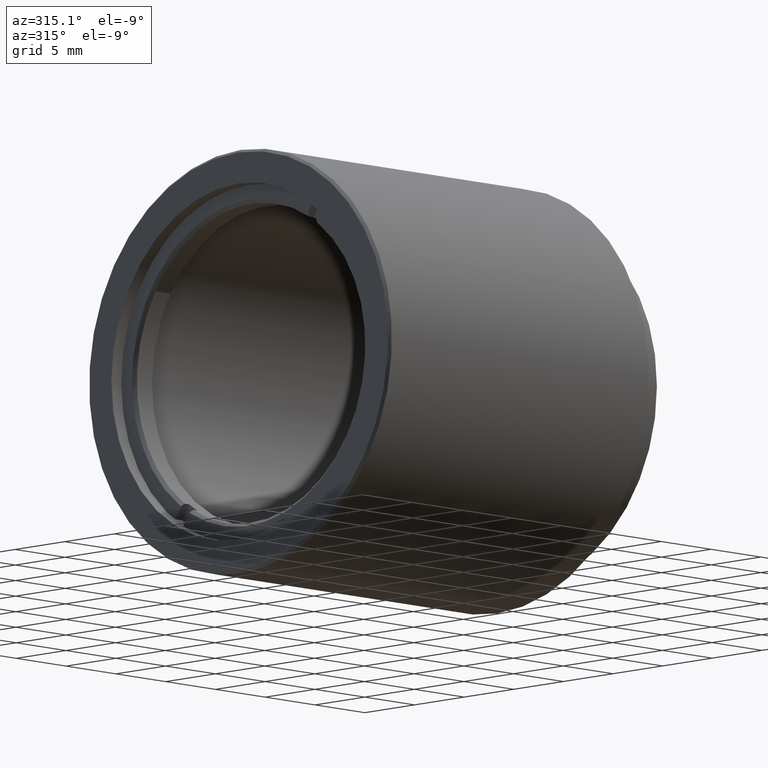
[diagram: clean part render]
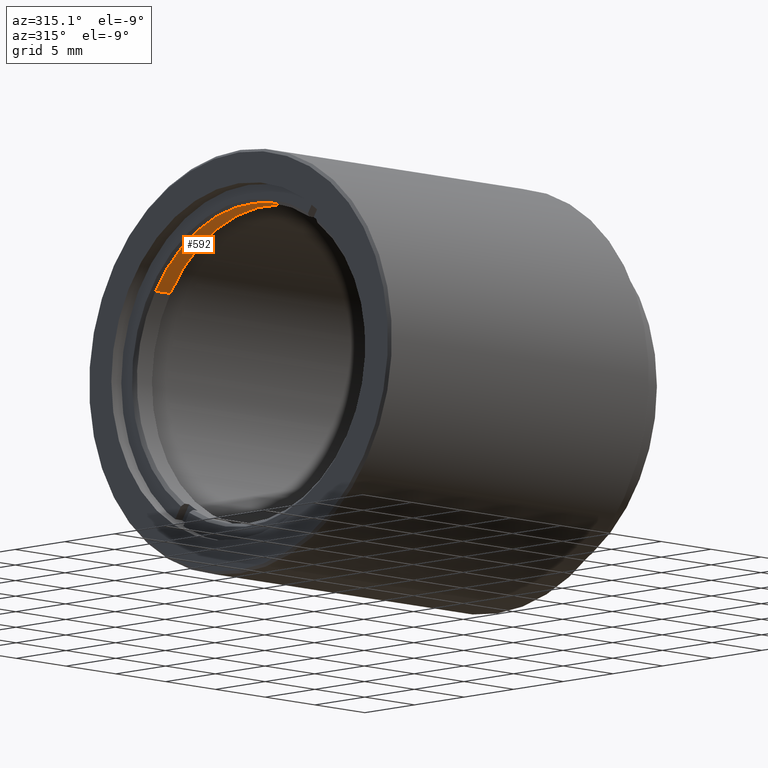
[diagram: same view with one face highlighted and labeled with its STEP entity id]
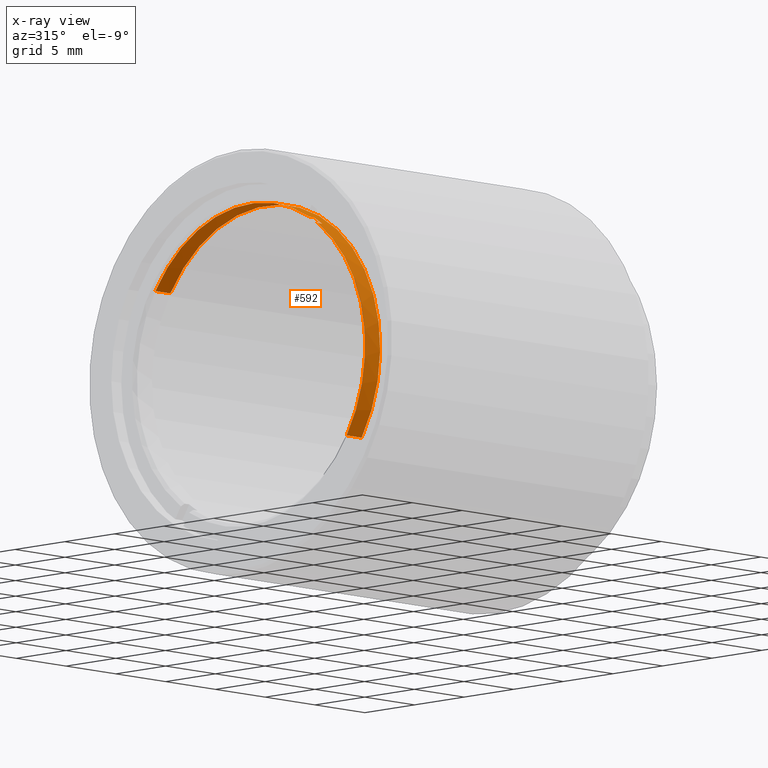
[diagram: x-ray of the same camera — body ghosted, the highlighted face saturated]
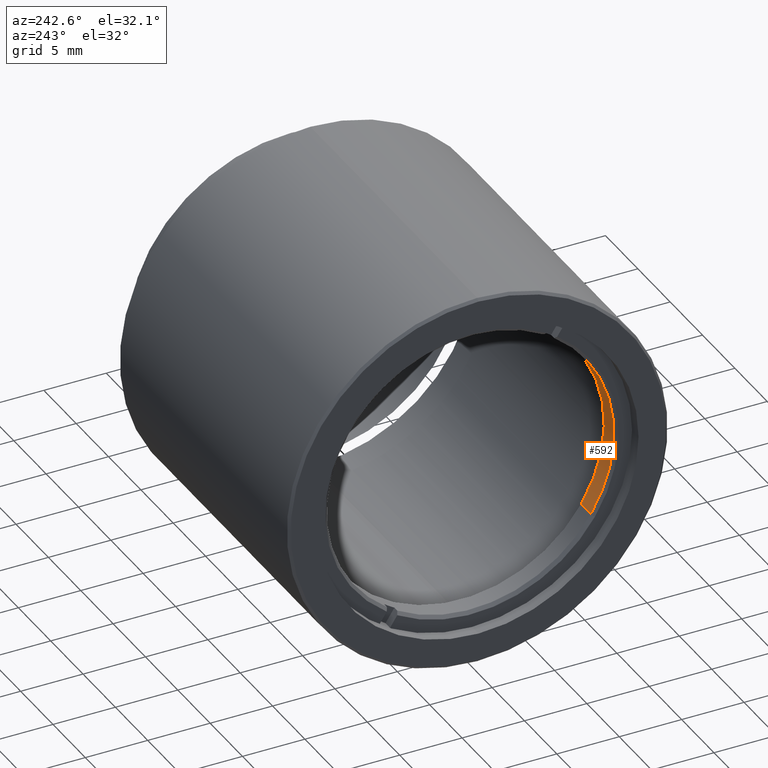
[diagram: same view with one face highlighted and labeled with its STEP entity id]
A machine part, auxiliary view. The second image highlights one B-rep face of the part: STEP entity #592.
The next image is the same camera in x-ray: the body ghosted, the highlighted face saturated — about 0% of this face is hidden behind the body in this view.
A second angle (auxiliary view) of the same face is appended — the face is thin or edge-on in the first view.
In plain terms, the highlighted cylindrical surface (partial cylindrical patch) has radius 11.5045 mm, axis along (1, 0, 0).
Its self-contained STEP definition (entity closure, byte-faithful):
#37 = AXIS2_PLACEMENT_3D ( 'NONE', #98, #1065, #1542 ) ;
#67 = VECTOR ( 'NONE', #273, 1000.000000000000000 ) ;
#98 = CARTESIAN_POINT ( 'NONE',  ( -19.92400000000001725, -20.10857142857141966, -1.761828530288947663E-16 ) ) ;
#103 = CARTESIAN_POINT ( 'NONE',  ( -20.97400000000001796, -25.96132369432516995, 9.904484396762612164 ) ) ;
#131 = DIRECTION ( 'NONE',  ( -1.000000000000000000, -2.056216930877364989E-31, -4.564002453902406316E-32 ) ) ;
#151 = DIRECTION ( 'NONE',  ( 1.000000000000000000, 2.056216930877364989E-31, 4.564002453902406316E-32 ) ) ;
#183 = VECTOR ( 'NONE', #151, 1000.000000000000000 ) ;
#193 = EDGE_CURVE ( 'NONE', #648, #1107, #1340, .T. ) ;
#199 = DIRECTION ( 'NONE',  ( 0.000000000000000000, -0.8379988549246821794, -0.5456719886020553467 ) ) ;
#237 = EDGE_CURVE ( 'NONE', #648, #1071, #884, .T. ) ;
#244 = LINE ( 'NONE', #1101, #183 ) ;
#253 = CARTESIAN_POINT ( 'NONE',  ( -21.42400000000002080, -20.10857142857141966, -1.761828530288946677E-16 ) ) ;
#262 = ORIENTED_EDGE ( 'NONE', *, *, #553, .F. ) ;
#272 = DIRECTION ( 'NONE',  ( -1.000000000000000000, -2.056216930877364989E-31, -4.564002453902406316E-32 ) ) ;
#273 = DIRECTION ( 'NONE',  ( -1.000000000000000000, -2.056216930877364989E-31, -4.564002453902406316E-32 ) ) ;
#319 = CARTESIAN_POINT ( 'NONE',  ( -19.92400000000001725, -10.46781360209042155, 6.277683392872337897 ) ) ;
#353 = EDGE_CURVE ( 'NONE', #992, #927, #1576, .T. ) ;
#354 = AXIS2_PLACEMENT_3D ( 'NONE', #754, #799, #199 ) ;
#381 = DIRECTION ( 'NONE',  ( 0.000000000000000000, -0.8379988549246821794, -0.5456719886020553467 ) ) ;
#455 = ORIENTED_EDGE ( 'NONE', *, *, #1045, .F. ) ;
#462 = DIRECTION ( 'NONE',  ( 1.000000000000000000, 2.056216930877364989E-31, 4.564002453902406316E-32 ) ) ;
#510 = EDGE_CURVE ( 'NONE', #1546, #1218, #1014, .T. ) ;
#553 = EDGE_CURVE ( 'NONE', #1546, #1071, #244, .T. ) ;
#554 = CARTESIAN_POINT ( 'NONE',  ( -21.42400000000002080, -25.96132369432516995, 9.904484396762612164 ) ) ;
#562 = CARTESIAN_POINT ( 'NONE',  ( -21.67400000000001015, -10.46781360209042333, 6.277683392872337897 ) ) ;
#592 = ADVANCED_FACE ( 'NONE', ( #628 ), #1352, .F. ) ;
#617 = CARTESIAN_POINT ( 'NONE',  ( -21.42400000000002080, -20.10857142857141966, -1.761828530288946677E-16 ) ) ;
#622 = LINE ( 'NONE', #1409, #913 ) ;
#628 = FACE_OUTER_BOUND ( 'NONE', #880, .T. ) ;
#642 = CARTESIAN_POINT ( 'NONE',  ( -20.97400000000001796, -26.79932254924984747, 9.358812408160558149 ) ) ;
#648 = VERTEX_POINT ( 'NONE', #642 ) ;
#652 = CARTESIAN_POINT ( 'NONE',  ( -19.92400000000001725, -29.74932925505242309, -6.277683392872337009 ) ) ;
#698 = DIRECTION ( 'NONE',  ( 1.000000000000000000, 2.056216930877364989E-31, 4.564002453902406316E-32 ) ) ;
#716 = ORIENTED_EDGE ( 'NONE', *, *, #237, .T. ) ;
#740 = CARTESIAN_POINT ( 'NONE',  ( -21.67400000000001015, -20.10857142857141966, -1.761828530288946924E-16 ) ) ;
#754 = CARTESIAN_POINT ( 'NONE',  ( -20.97400000000001796, -20.10857142857141966, -1.761828530288939528E-16 ) ) ;
#799 = DIRECTION ( 'NONE',  ( -1.000000000000000000, -2.056216930877364989E-31, -4.564002453902406316E-32 ) ) ;
#800 = CARTESIAN_POINT ( 'NONE',  ( -21.67400000000001015, -26.79932254924984747, 9.358812408160558149 ) ) ;
#880 = EDGE_LOOP ( 'NONE', ( #455, #1373, #1469, #716, #262, #1056, #1575, #1531 ) ) ;
#884 = CIRCLE ( 'NONE', #354, 11.50449999999998596 ) ;
#913 = VECTOR ( 'NONE', #462, 1000.000000000000000 ) ;
#927 = VERTEX_POINT ( 'NONE', #652 ) ;
#967 = VECTOR ( 'NONE', #698, 1000.000000000000000 ) ;
#984 = EDGE_CURVE ( 'NONE', #1218, #992, #1502, .T. ) ;
#992 = VERTEX_POINT ( 'NONE', #319 ) ;
#1014 = CIRCLE ( 'NONE', #1052, 11.50449999999998596 ) ;
#1045 = EDGE_CURVE ( 'NONE', #1456, #927, #622, .T. ) ;
#1052 = AXIS2_PLACEMENT_3D ( 'NONE', #617, #272, #381 ) ;
#1056 = ORIENTED_EDGE ( 'NONE', *, *, #510, .T. ) ;
#1065 = DIRECTION ( 'NONE',  ( 1.000000000000000000, 2.056216930877364989E-31, 4.564002453902406316E-32 ) ) ;
#1071 = VERTEX_POINT ( 'NONE', #103 ) ;
#1077 = CIRCLE ( 'NONE', #1210, 11.50449999999998596 ) ;
#1101 = CARTESIAN_POINT ( 'NONE',  ( -21.67400000000001370, -25.96132369432516995, 9.904484396762612164 ) ) ;
#1107 = VERTEX_POINT ( 'NONE', #1322 ) ;
#1145 = DIRECTION ( 'NONE',  ( 0.000000000000000000, 0.8379988549246820684, 0.5456719886020551247 ) ) ;
#1198 = EDGE_CURVE ( 'NONE', #1456, #1107, #1077, .T. ) ;
#1210 = AXIS2_PLACEMENT_3D ( 'NONE', #253, #131, #1462 ) ;
#1218 = VERTEX_POINT ( 'NONE', #1228 ) ;
#1228 = CARTESIAN_POINT ( 'NONE',  ( -21.42400000000002080, -10.46781360209041445, 6.277683392872343227 ) ) ;
#1236 = DIRECTION ( 'NONE',  ( 1.000000000000000000, 2.056216930877364989E-31, 4.564002453902406316E-32 ) ) ;
#1322 = CARTESIAN_POINT ( 'NONE',  ( -21.42400000000001725, -26.79932254924984747, 9.358812408160558149 ) ) ;
#1340 = LINE ( 'NONE', #800, #67 ) ;
#1352 = CYLINDRICAL_SURFACE ( 'NONE', #1459, 11.50449999999998951 ) ;
#1373 = ORIENTED_EDGE ( 'NONE', *, *, #1198, .T. ) ;
#1389 = CARTESIAN_POINT ( 'NONE',  ( -21.42400000000002080, -29.74932925505241599, -6.277683392872337897 ) ) ;
#1409 = CARTESIAN_POINT ( 'NONE',  ( -21.67400000000001015, -29.74932925505241954, -6.277683392872336121 ) ) ;
#1456 = VERTEX_POINT ( 'NONE', #1389 ) ;
#1459 = AXIS2_PLACEMENT_3D ( 'NONE', #740, #1236, #1145 ) ;
#1462 = DIRECTION ( 'NONE',  ( 0.000000000000000000, -0.8379988549246821794, -0.5456719886020553467 ) ) ;
#1469 = ORIENTED_EDGE ( 'NONE', *, *, #193, .F. ) ;
#1502 = LINE ( 'NONE', #562, #967 ) ;
#1531 = ORIENTED_EDGE ( 'NONE', *, *, #353, .T. ) ;
#1542 = DIRECTION ( 'NONE',  ( 0.000000000000000000, -0.8379988549246821794, -0.5456719886020553467 ) ) ;
#1546 = VERTEX_POINT ( 'NONE', #554 ) ;
#1575 = ORIENTED_EDGE ( 'NONE', *, *, #984, .T. ) ;
#1576 = CIRCLE ( 'NONE', #37, 11.50449999999998596 ) ;